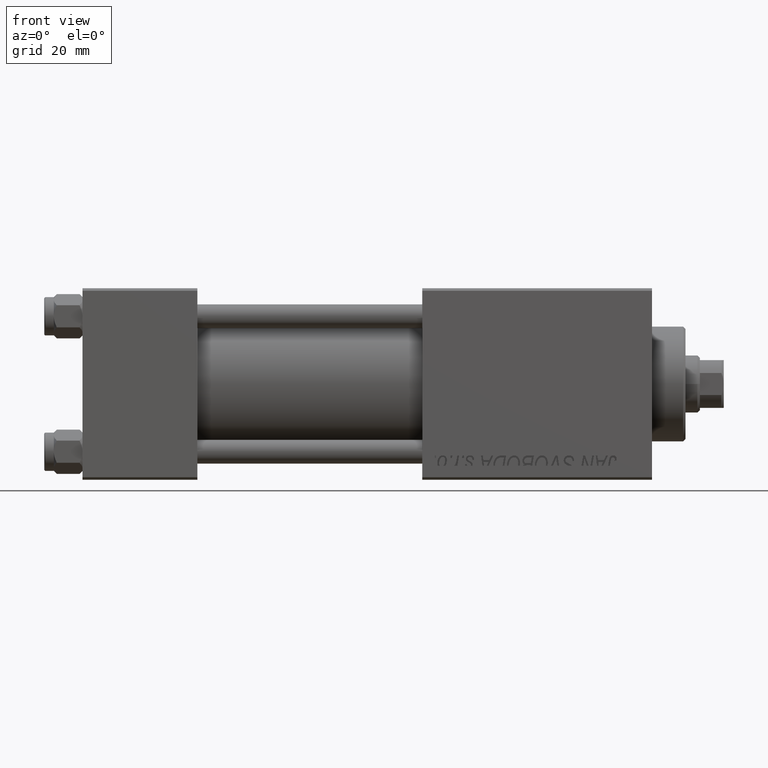
[diagram: clean part render]
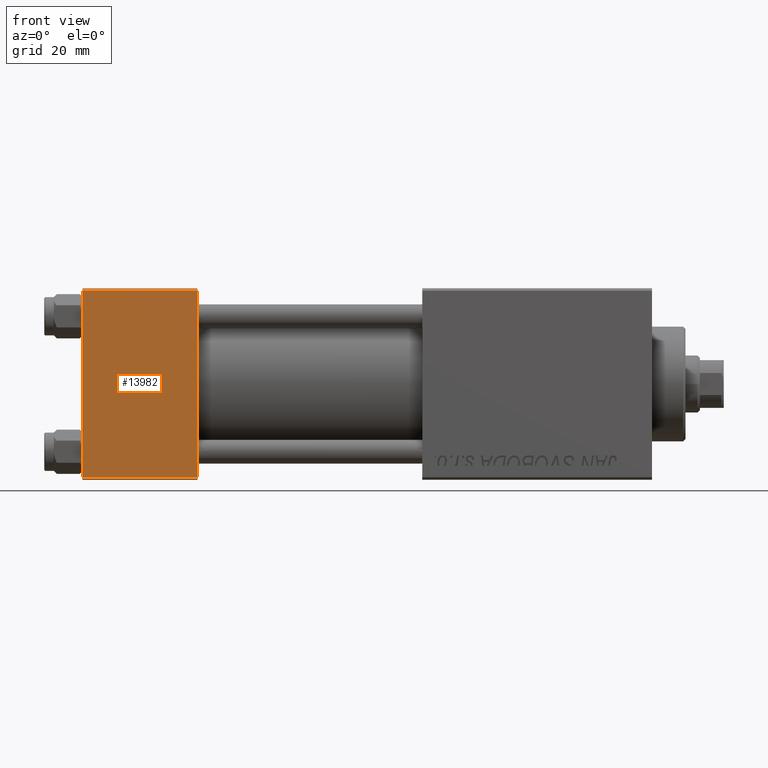
[diagram: same view with one face highlighted and labeled with its STEP entity id]
A machine part, front view. The second image highlights one B-rep face of the part: STEP entity #13982.
In plain terms, the highlighted planar face has unit normal (0, 1, 0).
Its self-contained STEP definition (entity closure, byte-faithful):
#3072 = CARTESIAN_POINT ( 'NONE',  ( 24.00000000000000000, -20.00000000000000000, -19.49999999999999645 ) ) ;
#3396 = ORIENTED_EDGE ( 'NONE', *, *, #11331, .F. ) ;
#4177 = CARTESIAN_POINT ( 'NONE',  ( 24.00000000000000000, -20.00000000000000355, 19.49999999999998224 ) ) ;
#6162 = DIRECTION ( 'NONE',  ( 0.000000000000000000, 8.673617379884036705E-17, -1.000000000000000000 ) ) ;
#8757 = DIRECTION ( 'NONE',  ( -1.000000000000000000, 0.000000000000000000, 0.000000000000000000 ) ) ;
#10713 = CARTESIAN_POINT ( 'NONE',  ( 24.00000000000000000, -20.00000000000000355, 19.99999999999998934 ) ) ;
#10935 = FACE_OUTER_BOUND ( 'NONE', #18261, .T. ) ;
#11331 = EDGE_CURVE ( 'NONE', #26288, #22316, #50095, .T. ) ;
#13271 = CARTESIAN_POINT ( 'NONE',  ( 0.000000000000000000, -20.00000000000000355, 19.99999999999998934 ) ) ;
#13982 = ADVANCED_FACE ( 'NONE', ( #10935 ), #14496, .F. ) ;
#14261 = LINE ( 'NONE', #3072, #45308 ) ;
#14496 = PLANE ( 'NONE',  #40754 ) ;
#14740 = DIRECTION ( 'NONE',  ( -0.000000000000000000, 1.000000000000000000, 8.673617379884036705E-17 ) ) ;
#17180 = ORIENTED_EDGE ( 'NONE', *, *, #50016, .T. ) ;
#17439 = CARTESIAN_POINT ( 'NONE',  ( 24.00000000000000000, -20.00000000000000000, -19.49999999999999645 ) ) ;
#18261 = EDGE_LOOP ( 'NONE', ( #44544, #17180, #3396, #28611 ) ) ;
#18478 = CARTESIAN_POINT ( 'NONE',  ( 24.00000000000000000, -20.00000000000000355, 19.49999999999998224 ) ) ;
#19939 = VECTOR ( 'NONE', #8757, 1000.000000000000000 ) ;
#22079 = CARTESIAN_POINT ( 'NONE',  ( 0.000000000000000000, -20.00000000000000000, -19.49999999999999645 ) ) ;
#22316 = VERTEX_POINT ( 'NONE', #17439 ) ;
#22666 = VECTOR ( 'NONE', #49839, 1000.000000000000000 ) ;
#25195 = VERTEX_POINT ( 'NONE', #22079 ) ;
#26288 = VERTEX_POINT ( 'NONE', #18478 ) ;
#26436 = CARTESIAN_POINT ( 'NONE',  ( 24.00000000000000000, -20.00000000000000355, 19.99999999999998934 ) ) ;
#26755 = EDGE_CURVE ( 'NONE', #26288, #40552, #47134, .T. ) ;
#28189 = VECTOR ( 'NONE', #6162, 1000.000000000000000 ) ;
#28611 = ORIENTED_EDGE ( 'NONE', *, *, #26755, .T. ) ;
#29583 = EDGE_CURVE ( 'NONE', #40552, #25195, #36155, .T. ) ;
#36155 = LINE ( 'NONE', #13271, #28189 ) ;
#40219 = CARTESIAN_POINT ( 'NONE',  ( 0.000000000000000000, -20.00000000000000355, 19.49999999999998224 ) ) ;
#40552 = VERTEX_POINT ( 'NONE', #40219 ) ;
#40754 = AXIS2_PLACEMENT_3D ( 'NONE', #26436, #14740, #49818 ) ;
#44544 = ORIENTED_EDGE ( 'NONE', *, *, #29583, .T. ) ;
#45308 = VECTOR ( 'NONE', #48848, 1000.000000000000000 ) ;
#47134 = LINE ( 'NONE', #4177, #19939 ) ;
#48848 = DIRECTION ( 'NONE',  ( 1.000000000000000000, 0.000000000000000000, 0.000000000000000000 ) ) ;
#49818 = DIRECTION ( 'NONE',  ( 0.000000000000000000, -8.673617379884036705E-17, 1.000000000000000000 ) ) ;
#49839 = DIRECTION ( 'NONE',  ( 0.000000000000000000, 8.673617379884036705E-17, -1.000000000000000000 ) ) ;
#50016 = EDGE_CURVE ( 'NONE', #25195, #22316, #14261, .T. ) ;
#50095 = LINE ( 'NONE', #10713, #22666 ) ;